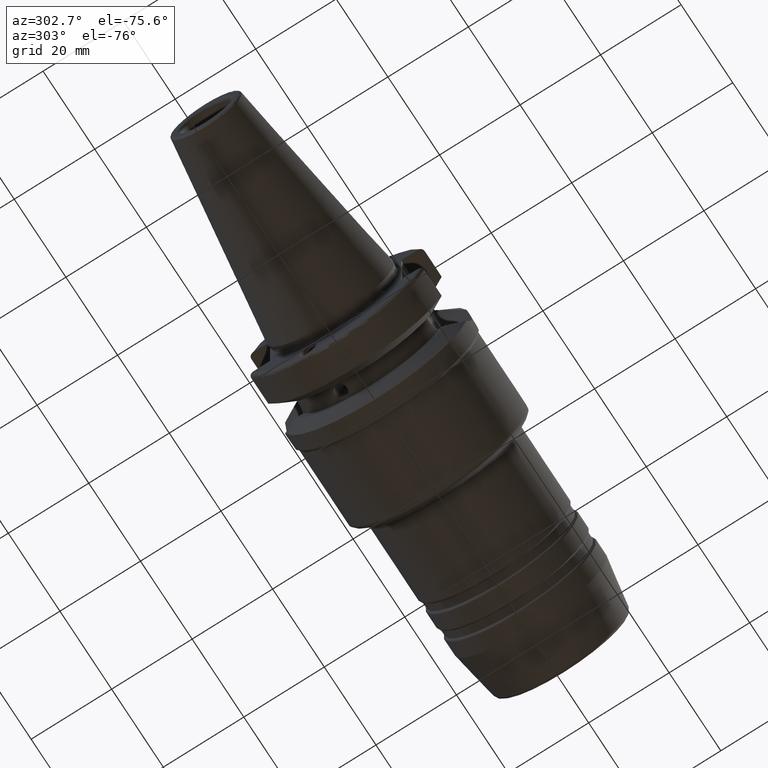
[diagram: clean part render]
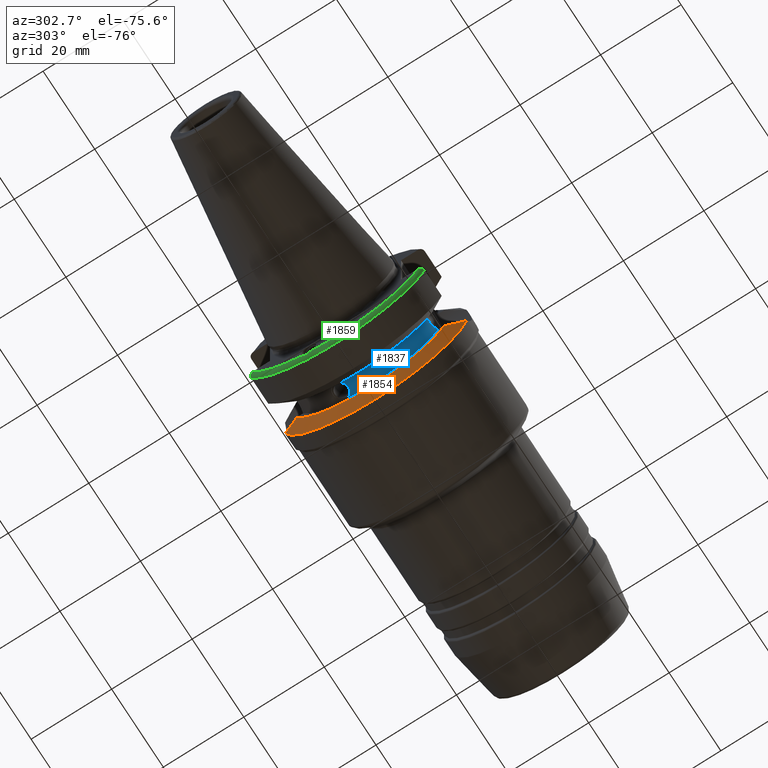
[diagram: same view with three faces highlighted in distinct colors, each labeled with its STEP entity id]
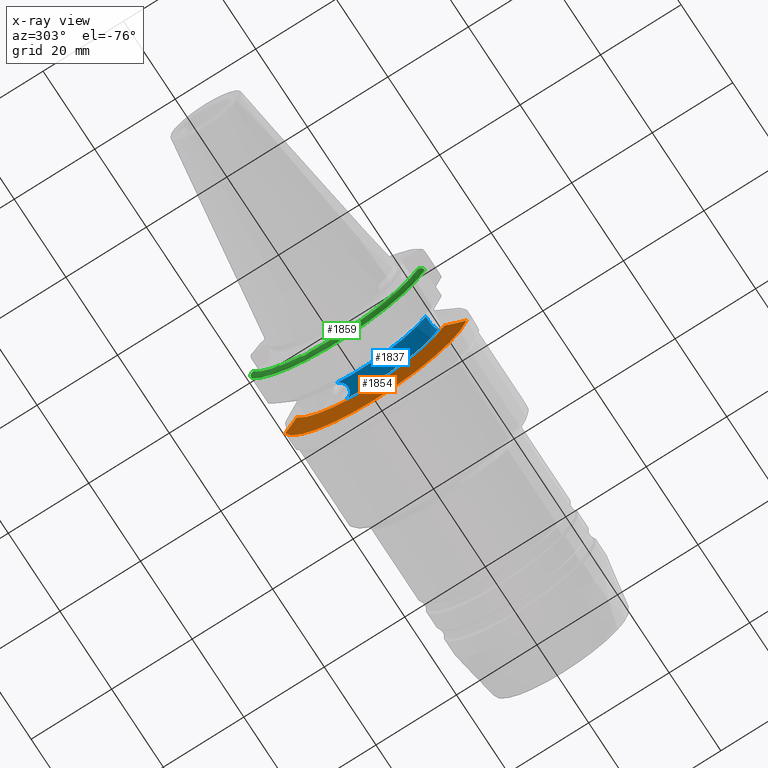
[diagram: x-ray of the same camera — body ghosted, the three highlighted faces saturated]
A machine part, auxiliary view with three faces highlighted in distinct colors.
The next image is the same camera in x-ray (body ghosted, the three faces saturated) — at least one of them is partly hidden behind the body in this view.
Their STEP definitions:

[orange] entity #1854 — the highlighted conical surface has half-angle 60.125 deg.
#49=CONICAL_SURFACE('',#2119,21.2331286619655,1.04937921276159);
#174=FACE_OUTER_BOUND('',#279,.T.);
#279=EDGE_LOOP('',(#1578,#1579,#1580,#1581));
#330=B_SPLINE_CURVE_WITH_KNOTS('',3,(#3476,#3477,#3478,#3479,#3480,#3481),
 .UNSPECIFIED.,.F.,.F.,(4,2,4),(7.68395213088373,8.02991733611869,8.17688748303414),
 .UNSPECIFIED.);
#336=B_SPLINE_CURVE_WITH_KNOTS('',3,(#3558,#3559,#3560,#3561,#3562,#3563),
 .UNSPECIFIED.,.F.,.F.,(4,2,4),(3.44756284108881,3.59453298800427,3.94049819323923),
 .UNSPECIFIED.);
#617=CIRCLE('',#2116,23.);
#620=CIRCLE('',#2120,19.466257323931);
#811=VERTEX_POINT('',#3473);
#812=VERTEX_POINT('',#3475);
#822=VERTEX_POINT('',#3540);
#824=VERTEX_POINT('',#3556);
#1072=EDGE_CURVE('',#811,#812,#330,.T.);
#1090=EDGE_CURVE('',#812,#822,#617,.T.);
#1094=EDGE_CURVE('',#811,#824,#620,.T.);
#1095=EDGE_CURVE('',#822,#824,#336,.T.);
#1578=ORIENTED_EDGE('',*,*,#1072,.F.);
#1579=ORIENTED_EDGE('',*,*,#1094,.T.);
#1580=ORIENTED_EDGE('',*,*,#1095,.F.);
#1581=ORIENTED_EDGE('',*,*,#1090,.F.);
#1854=ADVANCED_FACE('',(#174),#49,.T.);
#2116=AXIS2_PLACEMENT_3D('',#3541,#2670,#2671);
#2119=AXIS2_PLACEMENT_3D('',#3555,#2676,#2677);
#2120=AXIS2_PLACEMENT_3D('',#3557,#2678,#2679);
#2670=DIRECTION('center_axis',(1.,1.62798202122572E-21,0.));
#2671=DIRECTION('ref_axis',(0.,0.,-1.));
#2676=DIRECTION('center_axis',(1.,1.62798202122572E-21,0.));
#2677=DIRECTION('ref_axis',(0.,1.,0.));
#2678=DIRECTION('center_axis',(1.,1.62798202122572E-21,0.));
#2679=DIRECTION('ref_axis',(0.,0.,-1.));
#3473=CARTESIAN_POINT('',(15.6,-18.3236233917175,-6.57114906237867));
#3475=CARTESIAN_POINT('',(17.6299409595063,-22.5570191120744,-4.49231441213885));
#3476=CARTESIAN_POINT('Ctrl Pts',(15.6,-18.3236233917175,-6.57114906237867));
#3477=CARTESIAN_POINT('Ctrl Pts',(16.1098572405085,-19.3959223553921,-6.21035429941431));
#3478=CARTESIAN_POINT('Ctrl Pts',(16.6013448473778,-20.4213600687136,-5.77346727707879));
#3479=CARTESIAN_POINT('Ctrl Pts',(17.2377433516599,-21.744048580855,-5.03500381733928));
#3480=CARTESIAN_POINT('Ctrl Pts',(17.4363948664282,-22.1561594342104,-4.78011182703288));
#3481=CARTESIAN_POINT('Ctrl Pts',(17.6299409595063,-22.5570191120744,-4.49231441213885));
#3540=CARTESIAN_POINT('',(17.6299409595063,22.5570191120744,-4.49231441213885));
#3541=CARTESIAN_POINT('Origin',(17.6299409595063,2.08176427085476E-15,0.));
#3555=CARTESIAN_POINT('Origin',(16.6149704797531,2.08176261850107E-15,0.));
#3556=CARTESIAN_POINT('',(15.6,18.3236233917175,-6.57114906237867));
#3557=CARTESIAN_POINT('Origin',(15.6,2.08176096614738E-15,0.));
#3558=CARTESIAN_POINT('Ctrl Pts',(17.6299409595063,22.5570191120744,-4.49231441213885));
#3559=CARTESIAN_POINT('Ctrl Pts',(17.4363948664282,22.1561594342104,-4.78011182703289));
#3560=CARTESIAN_POINT('Ctrl Pts',(17.2377433516599,21.744048580855,-5.03500381733928));
#3561=CARTESIAN_POINT('Ctrl Pts',(16.6013448473778,20.4213600687136,-5.77346727707879));
#3562=CARTESIAN_POINT('Ctrl Pts',(16.1098572405085,19.3959223553921,-6.21035429941431));
#3563=CARTESIAN_POINT('Ctrl Pts',(15.6,18.3236233917175,-6.57114906237867));

[blue] entity #1837 — the highlighted cylindrical surface (partial cylindrical patch) has radius 18 mm, axis along (1, 0, 0).
#157=FACE_OUTER_BOUND('',#260,.T.);
#260=EDGE_LOOP('',(#1463,#1464,#1465,#1466,#1467));
#323=B_SPLINE_CURVE_WITH_KNOTS('',3,(#3306,#3307,#3308,#3309,#3310,#3311,
#3312,#3313,#3314,#3315,#3316,#3317,#3318,#3319,#3320,#3321,#3322,#3323),
 .UNSPECIFIED.,.F.,.F.,(4,2,2,2,2,2,2,2,4),(0.301616805591308,0.377020810963282,
0.452424816335256,0.527829213758936,0.603233611182616,0.678638008606296,
0.754042406029977,0.829446411401951,0.904850416773924),.UNSPECIFIED.);
#326=B_SPLINE_CURVE_WITH_KNOTS('',3,(#3361,#3362,#3363,#3364,#3365,#3366),
 .UNSPECIFIED.,.F.,.F.,(4,2,4),(1.98446312068074,2.15608509331101,2.21265100898607),
 .UNSPECIFIED.);
#371=LINE('',#3368,#446);
#446=VECTOR('',#2567,10.);
#596=CIRCLE('',#2077,18.);
#597=CIRCLE('',#2078,18.);
#773=VERTEX_POINT('',#3303);
#774=VERTEX_POINT('',#3305);
#778=VERTEX_POINT('',#3358);
#779=VERTEX_POINT('',#3360);
#780=VERTEX_POINT('',#3367);
#1023=EDGE_CURVE('',#774,#773,#323,.T.);
#1029=EDGE_CURVE('',#778,#773,#596,.T.);
#1030=EDGE_CURVE('',#778,#779,#326,.T.);
#1031=EDGE_CURVE('',#779,#780,#371,.T.);
#1032=EDGE_CURVE('',#780,#774,#597,.T.);
#1463=ORIENTED_EDGE('',*,*,#1023,.T.);
#1464=ORIENTED_EDGE('',*,*,#1029,.F.);
#1465=ORIENTED_EDGE('',*,*,#1030,.T.);
#1466=ORIENTED_EDGE('',*,*,#1031,.T.);
#1467=ORIENTED_EDGE('',*,*,#1032,.T.);
#1770=CYLINDRICAL_SURFACE('',#2076,18.);
#1837=ADVANCED_FACE('',(#157),#1770,.T.);
#2076=AXIS2_PLACEMENT_3D('',#3357,#2563,#2564);
#2077=AXIS2_PLACEMENT_3D('',#3359,#2565,#2566);
#2078=AXIS2_PLACEMENT_3D('',#3369,#2568,#2569);
#2563=DIRECTION('center_axis',(1.,1.62798202122572E-21,0.));
#2564=DIRECTION('ref_axis',(0.,1.,0.));
#2565=DIRECTION('center_axis',(1.,1.62798202122572E-21,0.));
#2566=DIRECTION('ref_axis',(0.,0.,-1.));
#2567=DIRECTION('',(-1.,-1.62798202122572E-21,0.));
#2568=DIRECTION('center_axis',(1.,1.62798202122572E-21,0.));
#2569=DIRECTION('ref_axis',(0.,0.,-1.));
#3303=CARTESIAN_POINT('',(15.6,6.15636257986204,-16.9144671741463));
#3305=CARTESIAN_POINT('',(11.6,6.15636257986204,-16.9144671741463));
#3306=CARTESIAN_POINT('Ctrl Pts',(11.6,6.15636257986204,-16.9144671741463));
#3307=CARTESIAN_POINT('Ctrl Pts',(11.6,5.92017395510955,-17.0004328032285));
#3308=CARTESIAN_POINT('Ctrl Pts',(11.6502741541558,5.66638994445906,-17.0866270171134));
#3309=CARTESIAN_POINT('Ctrl Pts',(11.8544462906484,5.19623089225241,-17.2354281159616));
#3310=CARTESIAN_POINT('Ctrl Pts',(12.0083328280156,4.97994110148113,-17.2983199183638));
#3311=CARTESIAN_POINT('Ctrl Pts',(12.3632409698814,4.63687000353515,-17.3934218103306));
#3312=CARTESIAN_POINT('Ctrl Pts',(12.587996750585,4.48716279851813,-17.4320366703388));
#3313=CARTESIAN_POINT('Ctrl Pts',(13.08069335908,4.28809828983861,-17.4820692588007));
#3314=CARTESIAN_POINT('Ctrl Pts',(13.3486520085877,4.23885707963151,-17.4937729109091));
#3315=CARTESIAN_POINT('Ctrl Pts',(13.8513479914123,4.23885707963151,-17.4937729109091));
#3316=CARTESIAN_POINT('Ctrl Pts',(14.1193066409199,4.28809828983861,-17.4820692588007));
#3317=CARTESIAN_POINT('Ctrl Pts',(14.6120032494149,4.48716279851813,-17.4320366703388));
#3318=CARTESIAN_POINT('Ctrl Pts',(14.8367590301186,4.63687000353515,-17.3934218103306));
#3319=CARTESIAN_POINT('Ctrl Pts',(15.1916671719844,4.97994110148114,-17.2983199183638));
#3320=CARTESIAN_POINT('Ctrl Pts',(15.3455537093516,5.19623089225241,-17.2354281159616));
#3321=CARTESIAN_POINT('Ctrl Pts',(15.5497258458442,5.66638994445906,-17.0866270171134));
#3322=CARTESIAN_POINT('Ctrl Pts',(15.6,5.92017395510956,-17.0004328032285));
#3323=CARTESIAN_POINT('Ctrl Pts',(15.6,6.15636257986204,-16.9144671741463));
#3357=CARTESIAN_POINT('Origin',(13.6,2.08175771018334E-15,0.));
#3358=CARTESIAN_POINT('',(15.6,-16.757684804292,-6.57114906237867));
#3359=CARTESIAN_POINT('Origin',(15.6,2.08176096614738E-15,0.));
#3360=CARTESIAN_POINT('',(13.4980384612482,-16.3,-7.636098480245));
#3361=CARTESIAN_POINT('Ctrl Pts',(15.6,-16.757684804292,-6.57114906237867));
#3362=CARTESIAN_POINT('Ctrl Pts',(15.1240022455652,-16.6256027426008,-6.90798353944051));
#3363=CARTESIAN_POINT('Ctrl Pts',(14.6012065414299,-16.4995936761885,-7.19909968210666));
#3364=CARTESIAN_POINT('Ctrl Pts',(13.8692695970121,-16.3611703468843,-7.5045998651608));
#3365=CARTESIAN_POINT('Ctrl Pts',(13.6847796623189,-16.329191641879,-7.57378606195196));
#3366=CARTESIAN_POINT('Ctrl Pts',(13.4980384612482,-16.3,-7.636098480245));
#3367=CARTESIAN_POINT('',(11.6,-16.3,-7.636098480245));
#3368=CARTESIAN_POINT('',(13.6,-16.3,-7.63609848024499));
#3369=CARTESIAN_POINT('Origin',(11.6,2.08175445421929E-15,0.));

[green] entity #1859 — the highlighted toroidal blend (fillet) surface has major radius 22 mm and minor (blend) radius 1 mm.
#71=TOROIDAL_SURFACE('',#2128,22.,1.00000000000001);
#179=FACE_OUTER_BOUND('',#284,.T.);
#284=EDGE_LOOP('',(#1604,#1605,#1606,#1607,#1608,#1609));
#327=B_SPLINE_CURVE_WITH_KNOTS('',3,(#3390,#3391,#3392,#3393,#3394,#3395,
#3396,#3397,#3398,#3399,#3400,#3401,#3402,#3403),.UNSPECIFIED.,.F.,.F.,
(4,2,2,2,2,2,4),(-0.383450132328127,-0.351689221297584,-0.311522341711588,
-0.279107831710755,-0.246818888176327,-0.207066753659492,-0.173596618999697),
 .UNSPECIFIED.);
#334=B_SPLINE_CURVE_WITH_KNOTS('',3,(#3519,#3520,#3521,#3522,#3523,#3524,
#3525,#3526,#3527,#3528),.UNSPECIFIED.,.F.,.F.,(4,2,2,2,4),(0.,0.0362302924551293,
0.073702201526494,0.112799364340696,0.153429778670641),.UNSPECIFIED.);
#338=B_SPLINE_CURVE_WITH_KNOTS('',3,(#3588,#3589,#3590,#3591,#3592,#3593,
#3594,#3595,#3596,#3597),.UNSPECIFIED.,.F.,.F.,(4,2,2,2,4),(-0.153429778670641,
-0.112799364340696,-0.073702201526494,-0.0362302924551292,0.),
 .UNSPECIFIED.);
#602=CIRCLE('',#2090,22.);
#603=CIRCLE('',#2091,22.);
#623=CIRCLE('',#2127,23.);
#787=VERTEX_POINT('',#3387);
#788=VERTEX_POINT('',#3389);
#791=VERTEX_POINT('',#3410);
#792=VERTEX_POINT('',#3413);
#818=VERTEX_POINT('',#3518);
#829=VERTEX_POINT('',#3584);
#1041=EDGE_CURVE('',#788,#787,#327,.T.);
#1046=EDGE_CURVE('',#787,#791,#602,.T.);
#1047=EDGE_CURVE('',#792,#788,#603,.T.);
#1083=EDGE_CURVE('',#818,#792,#334,.T.);
#1103=EDGE_CURVE('',#818,#829,#623,.T.);
#1105=EDGE_CURVE('',#791,#829,#338,.T.);
#1604=ORIENTED_EDGE('',*,*,#1041,.T.);
#1605=ORIENTED_EDGE('',*,*,#1046,.T.);
#1606=ORIENTED_EDGE('',*,*,#1105,.T.);
#1607=ORIENTED_EDGE('',*,*,#1103,.F.);
#1608=ORIENTED_EDGE('',*,*,#1083,.T.);
#1609=ORIENTED_EDGE('',*,*,#1047,.T.);
#1859=ADVANCED_FACE('',(#179),#71,.T.);
#2090=AXIS2_PLACEMENT_3D('',#3412,#2598,#2599);
#2091=AXIS2_PLACEMENT_3D('',#3414,#2600,#2601);
#2127=AXIS2_PLACEMENT_3D('',#3585,#2695,#2696);
#2128=AXIS2_PLACEMENT_3D('',#3587,#2698,#2699);
#2598=DIRECTION('center_axis',(1.,1.62798202122572E-21,0.));
#2599=DIRECTION('ref_axis',(0.,0.,-1.));
#2600=DIRECTION('center_axis',(1.,1.62798202122572E-21,0.));
#2601=DIRECTION('ref_axis',(0.,0.,-1.));
#2695=DIRECTION('center_axis',(1.,1.62798202122572E-21,0.));
#2696=DIRECTION('ref_axis',(0.,0.,-1.));
#2698=DIRECTION('center_axis',(1.,1.62798202122572E-21,0.));
#2699=DIRECTION('ref_axis',(0.,0.,-1.));
#3387=CARTESIAN_POINT('',(2.,8.62571963431162,-20.2385019403673));
#3389=CARTESIAN_POINT('',(2.,6.40137369211843,-21.0480976540364));
#3390=CARTESIAN_POINT('Ctrl Pts',(1.99999999999999,6.40137369211843,-21.0480976540364));
#3391=CARTESIAN_POINT('Ctrl Pts',(1.99999999999999,6.51218075217939,-21.0925664729134));
#3392=CARTESIAN_POINT('Ctrl Pts',(2.00839141698566,6.632537505233,-21.1250853644164));
#3393=CARTESIAN_POINT('Ctrl Pts',(2.03416784761472,6.92628989879229,-21.1651926793778));
#3394=CARTESIAN_POINT('Ctrl Pts',(2.05162151175562,7.09315183259901,-21.1623301132091));
#3395=CARTESIAN_POINT('Ctrl Pts',(2.07231112910132,7.39163000172577,-21.11847888572));
#3396=CARTESIAN_POINT('Ctrl Pts',(2.07774372051908,7.52319126364718,-21.0850375933111));
#3397=CARTESIAN_POINT('Ctrl Pts',(2.07808045348674,7.77713511641414,-20.9935506719207));
#3398=CARTESIAN_POINT('Ctrl Pts',(2.07302683632531,7.89936063694556,-20.9356688169513));
#3399=CARTESIAN_POINT('Ctrl Pts',(2.0530921798178,8.15555780805866,-20.7805312349047));
#3400=CARTESIAN_POINT('Ctrl Pts',(2.03606073743508,8.28494218361154,-20.6777578738726));
#3401=CARTESIAN_POINT('Ctrl Pts',(2.00930022600955,8.49059272091547,-20.4567273373599));
#3402=CARTESIAN_POINT('Ctrl Pts',(1.99999999999999,8.56640089026486,-20.349439718379));
#3403=CARTESIAN_POINT('Ctrl Pts',(1.99999999999999,8.62571963431161,-20.2385019403673));
#3410=CARTESIAN_POINT('',(2.,20.4743131752936,-8.05));
#3412=CARTESIAN_POINT('Origin',(2.,2.08173882559189E-15,0.));
#3413=CARTESIAN_POINT('',(2.,-20.4743131752936,-8.05));
#3414=CARTESIAN_POINT('Origin',(2.,2.08173882559189E-15,0.));
#3518=CARTESIAN_POINT('',(2.99999999999999,-21.5452430944745,-8.05));
#3519=CARTESIAN_POINT('Ctrl Pts',(2.99999999999999,-21.5452430944745,-8.05));
#3520=CARTESIAN_POINT('Ctrl Pts',(2.8792323584829,-21.5452430944745,-8.05));
#3521=CARTESIAN_POINT('Ctrl Pts',(2.73736392622753,-21.5156543568949,-8.05));
#3522=CARTESIAN_POINT('Ctrl Pts',(2.51168046915071,-21.4185837950444,-8.05));
#3523=CARTESIAN_POINT('Ctrl Pts',(2.38899751698434,-21.3324722583086,-8.05));
#3524=CARTESIAN_POINT('Ctrl Pts',(2.21218447849375,-21.1484080721249,-8.05));
#3525=CARTESIAN_POINT('Ctrl Pts',(2.128361602777,-21.0163810455414,-8.05));
#3526=CARTESIAN_POINT('Ctrl Pts',(2.03008808262398,-20.7694601196341,-8.05));
#3527=CARTESIAN_POINT('Ctrl Pts',(1.99999999999999,-20.6097478897267,-8.05));
#3528=CARTESIAN_POINT('Ctrl Pts',(1.99999999999999,-20.4743131752936,-8.05));
#3584=CARTESIAN_POINT('',(2.99999999999999,21.5452430944745,-8.05));
#3585=CARTESIAN_POINT('Origin',(2.99999999999999,2.08174045357391E-15,0.));
#3587=CARTESIAN_POINT('Origin',(2.99999999999999,2.08174045357391E-15,0.));
#3588=CARTESIAN_POINT('Ctrl Pts',(1.99999999999999,20.4743131752936,-8.05));
#3589=CARTESIAN_POINT('Ctrl Pts',(1.99999999999999,20.6097478897267,-8.05));
#3590=CARTESIAN_POINT('Ctrl Pts',(2.03008808262398,20.7694601196341,-8.05));
#3591=CARTESIAN_POINT('Ctrl Pts',(2.128361602777,21.0163810455414,-8.05));
#3592=CARTESIAN_POINT('Ctrl Pts',(2.21218447849375,21.1484080721249,-8.05));
#3593=CARTESIAN_POINT('Ctrl Pts',(2.38899751698434,21.3324722583086,-8.05));
#3594=CARTESIAN_POINT('Ctrl Pts',(2.51168046915071,21.4185837950444,-8.05));
#3595=CARTESIAN_POINT('Ctrl Pts',(2.73736392622753,21.5156543568949,-8.05));
#3596=CARTESIAN_POINT('Ctrl Pts',(2.8792323584829,21.5452430944745,-8.05));
#3597=CARTESIAN_POINT('Ctrl Pts',(2.99999999999999,21.5452430944745,-8.05));